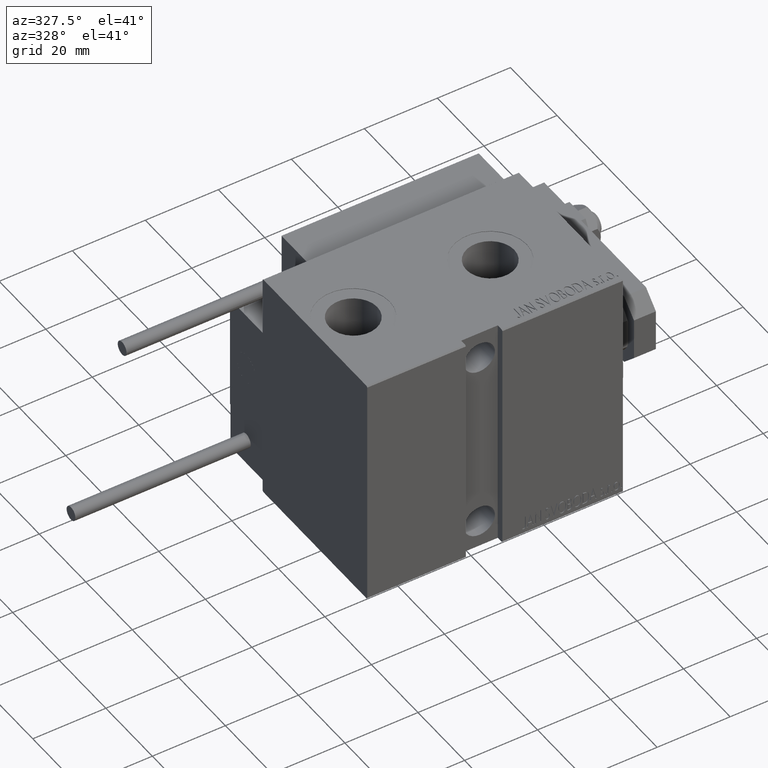
[diagram: clean part render]
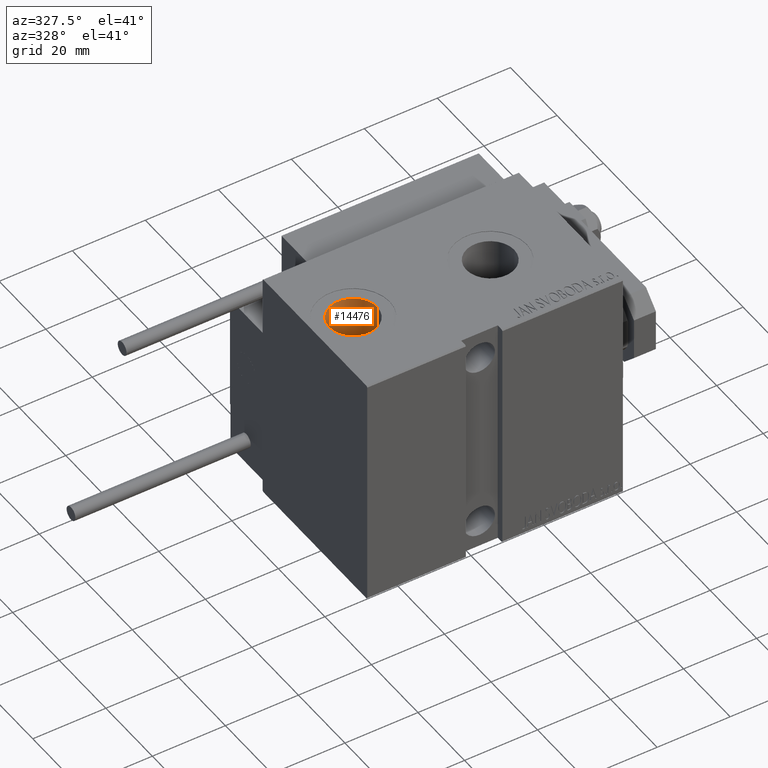
[diagram: same view with one face highlighted and labeled with its STEP entity id]
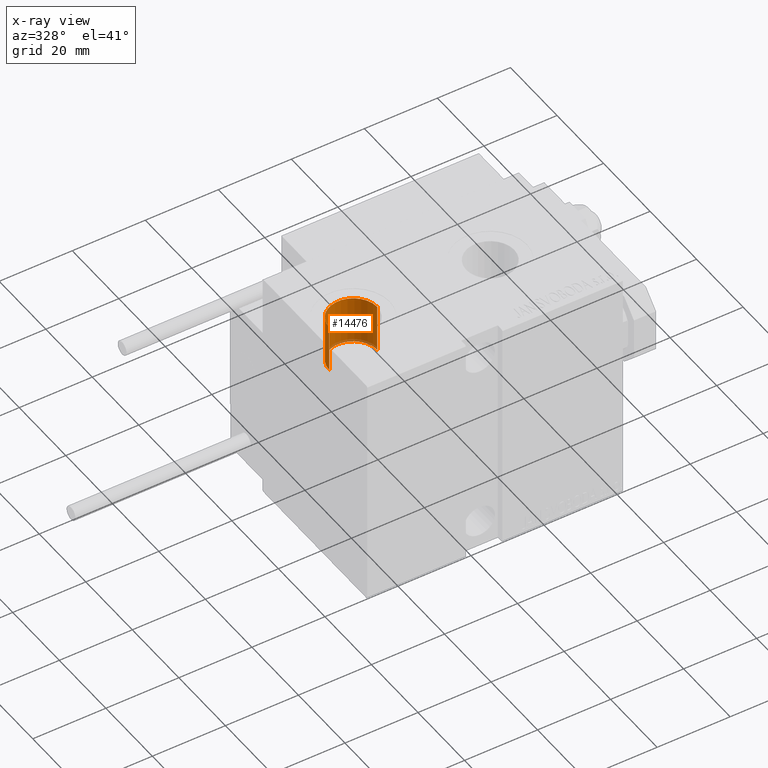
[diagram: x-ray of the same camera — body ghosted, the highlighted face saturated]
A machine part, auxiliary view. The second image highlights one B-rep face of the part: STEP entity #14476.
The next image is the same camera in x-ray: the body ghosted, the highlighted face saturated — about 5% of this face is hidden behind the body in this view.
In plain terms, the highlighted cylindrical surface (edge-blend (fillet) strip) has radius 6.58 mm, axis along (0, 0, 1).
Its self-contained STEP definition (entity closure, byte-faithful):
#123 = DIRECTION ( 'NONE',  ( 1.000000000000000000, 0.000000000000000000, 0.000000000000000000 ) ) ;
#1081 = VERTEX_POINT ( 'NONE', #13493 ) ;
#3396 = CARTESIAN_POINT ( 'NONE',  ( 59.50000000000000711, -5.011423375044110611E-15, 32.39999999999999858 ) ) ;
#3609 = ORIENTED_EDGE ( 'NONE', *, *, #9831, .F. ) ;
#3892 = ORIENTED_EDGE ( 'NONE', *, *, #21052, .F. ) ;
#5453 = LINE ( 'NONE', #39987, #7402 ) ;
#6958 = AXIS2_PLACEMENT_3D ( 'NONE', #30455, #18617, #42274 ) ;
#7402 = VECTOR ( 'NONE', #43782, 1000.000000000000000 ) ;
#7995 = CARTESIAN_POINT ( 'NONE',  ( 52.92000000000000881, -4.205605781205153147E-15, 32.39999999999999858 ) ) ;
#9831 = EDGE_CURVE ( 'NONE', #25728, #1081, #40704, .T. ) ;
#11292 = CYLINDRICAL_SURFACE ( 'NONE', #6958, 6.579999999999995630 ) ;
#12883 = VECTOR ( 'NONE', #26918, 1000.000000000000000 ) ;
#13493 = CARTESIAN_POINT ( 'NONE',  ( 66.07999999999999829, -5.011423375044110611E-15, 19.23999999999999844 ) ) ;
#14476 = ADVANCED_FACE ( 'NONE', ( #14833 ), #11292, .F. ) ;
#14833 = FACE_OUTER_BOUND ( 'NONE', #26964, .T. ) ;
#17759 = VERTEX_POINT ( 'NONE', #7995 ) ;
#18617 = DIRECTION ( 'NONE',  ( -0.000000000000000000, -0.000000000000000000, 1.000000000000000000 ) ) ;
#21052 = EDGE_CURVE ( 'NONE', #1081, #38429, #41780, .T. ) ;
#22656 = ORIENTED_EDGE ( 'NONE', *, *, #45994, .T. ) ;
#25036 = EDGE_CURVE ( 'NONE', #17759, #38429, #43130, .T. ) ;
#25728 = VERTEX_POINT ( 'NONE', #41996 ) ;
#26918 = DIRECTION ( 'NONE',  ( -0.000000000000000000, -0.000000000000000000, 1.000000000000000000 ) ) ;
#26964 = EDGE_LOOP ( 'NONE', ( #3609, #22656, #28967, #3892 ) ) ;
#28967 = ORIENTED_EDGE ( 'NONE', *, *, #25036, .T. ) ;
#30455 = CARTESIAN_POINT ( 'NONE',  ( 59.50000000000000711, -5.011423375044110611E-15, 19.23999999999999844 ) ) ;
#30705 = CARTESIAN_POINT ( 'NONE',  ( 66.07999999999999829, -5.011423375044110611E-15, 19.23999999999999844 ) ) ;
#31036 = DIRECTION ( 'NONE',  ( 1.000000000000000000, 0.000000000000000000, 0.000000000000000000 ) ) ;
#35225 = CARTESIAN_POINT ( 'NONE',  ( 66.07999999999999829, -5.011423375044110611E-15, 32.39999999999999858 ) ) ;
#35908 = AXIS2_PLACEMENT_3D ( 'NONE', #38331, #46183, #31036 ) ;
#38331 = CARTESIAN_POINT ( 'NONE',  ( 59.50000000000000711, -5.011423375044110611E-15, 19.23999999999999844 ) ) ;
#38429 = VERTEX_POINT ( 'NONE', #35225 ) ;
#39987 = CARTESIAN_POINT ( 'NONE',  ( 52.92000000000000881, -4.205605781205153147E-15, 19.23999999999999844 ) ) ;
#40701 = AXIS2_PLACEMENT_3D ( 'NONE', #3396, #49835, #123 ) ;
#40704 = CIRCLE ( 'NONE', #35908, 6.579999999999995630 ) ;
#41780 = LINE ( 'NONE', #30705, #12883 ) ;
#41996 = CARTESIAN_POINT ( 'NONE',  ( 52.92000000000000881, -4.205605781205153147E-15, 19.23999999999999844 ) ) ;
#42274 = DIRECTION ( 'NONE',  ( 1.000000000000000000, 0.000000000000000000, 0.000000000000000000 ) ) ;
#43130 = CIRCLE ( 'NONE', #40701, 6.579999999999995630 ) ;
#43782 = DIRECTION ( 'NONE',  ( -0.000000000000000000, -0.000000000000000000, 1.000000000000000000 ) ) ;
#45994 = EDGE_CURVE ( 'NONE', #25728, #17759, #5453, .T. ) ;
#46183 = DIRECTION ( 'NONE',  ( 0.000000000000000000, 0.000000000000000000, 1.000000000000000000 ) ) ;
#49835 = DIRECTION ( 'NONE',  ( 0.000000000000000000, 0.000000000000000000, 1.000000000000000000 ) ) ;